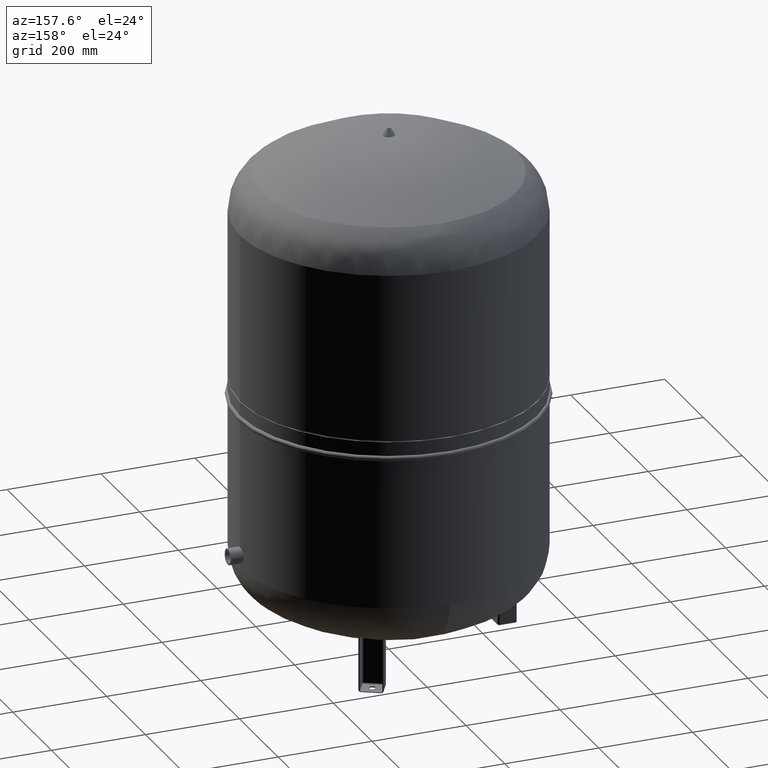
[diagram: clean part render]
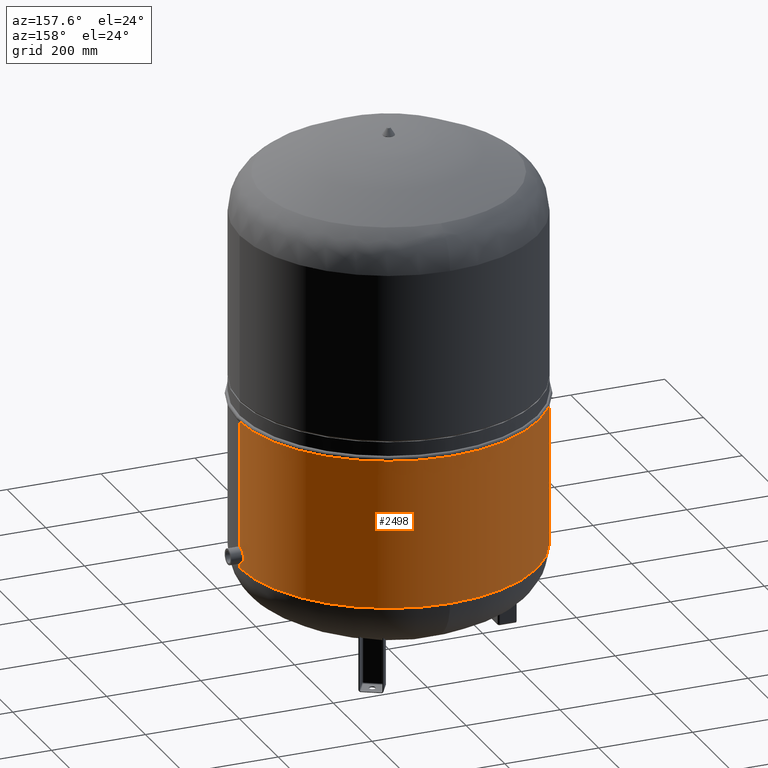
[diagram: same view with one face highlighted and labeled with its STEP entity id]
A machine part, auxiliary view. The second image highlights one B-rep face of the part: STEP entity #2498.
In plain terms, the highlighted cylindrical surface (partial cylindrical patch) has radius 317 mm, axis along (0, 0, 1).
Its self-contained STEP definition (entity closure, byte-faithful):
#2428=CARTESIAN_POINT('',(317.000000000000110,0.0,524.550004485004250));
#2429=VERTEX_POINT('',#2428);
#2430=CARTESIAN_POINT('',(317.0,0.0,206.999999999999890));
#2431=VERTEX_POINT('',#2430);
#2432=CARTESIAN_POINT('',(317.000000000000110,0.0,524.550004485004250));
#2433=DIRECTION('',(0.0,0.0,-1.0));
#2434=VECTOR('',#2433,317.550004485004370);
#2435=LINE('',#2432,#2434);
#2436=EDGE_CURVE('',#2429,#2431,#2435,.T.);
#2438=CARTESIAN_POINT('',(-317.000000000000060,-3.882002E-014,524.550004485004250));
#2439=VERTEX_POINT('',#2438);
#2447=CARTESIAN_POINT('',(-317.000000000000060,-3.882002E-014,206.999999999999860));
#2448=VERTEX_POINT('',#2447);
#2449=CARTESIAN_POINT('',(-317.000000000000060,-3.882002E-014,524.550004485004250));
#2450=DIRECTION('',(0.0,0.0,-1.0));
#2451=VECTOR('',#2450,317.550004485004370);
#2452=LINE('',#2449,#2451);
#2453=EDGE_CURVE('',#2439,#2448,#2452,.T.);
#2470=CARTESIAN_POINT('',(-1.668796E-014,0.0,206.999999999999830));
#2471=DIRECTION('',(0.0,0.0,1.0));
#2472=DIRECTION('',(1.0,0.0,0.0));
#2473=AXIS2_PLACEMENT_3D('',#2470,#2471,#2472);
#2474=CIRCLE('',#2473,317.0);
#2475=EDGE_CURVE('',#2431,#2448,#2474,.T.);
#2481=CARTESIAN_POINT('',(-9.286759E-015,0.0,365.775002242502070));
#2482=DIRECTION('',(4.661443E-017,0.0,1.0));
#2483=DIRECTION('',(1.0,0.0,0.0));
#2484=AXIS2_PLACEMENT_3D('',#2481,#2482,#2483);
#2485=CYLINDRICAL_SURFACE('',#2484,317.000000000000060);
#2486=ORIENTED_EDGE('',*,*,#2436,.T.);
#2487=ORIENTED_EDGE('',*,*,#2475,.T.);
#2488=ORIENTED_EDGE('',*,*,#2453,.F.);
#2489=CARTESIAN_POINT('',(-1.885553E-015,0.0,524.550004485004250));
#2490=DIRECTION('',(0.0,0.0,1.0));
#2491=DIRECTION('',(1.0,0.0,0.0));
#2492=AXIS2_PLACEMENT_3D('',#2489,#2490,#2491);
#2493=CIRCLE('',#2492,317.000000000000110);
#2494=EDGE_CURVE('',#2429,#2439,#2493,.T.);
#2495=ORIENTED_EDGE('',*,*,#2494,.F.);
#2496=EDGE_LOOP('',(#2486,#2487,#2488,#2495));
#2497=FACE_OUTER_BOUND('',#2496,.T.);
#2498=ADVANCED_FACE('',(#2497),#2485,.T.);